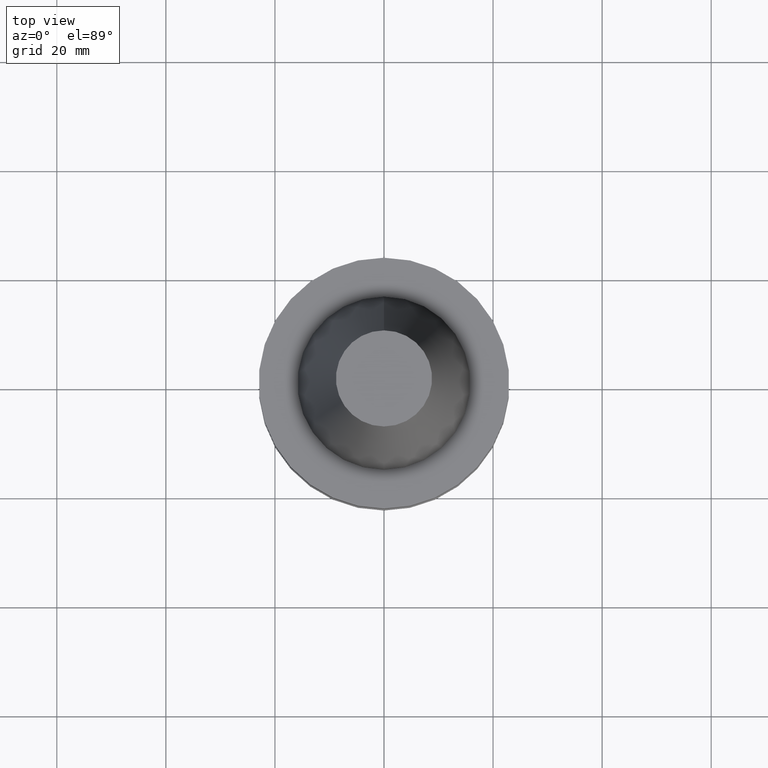
[diagram: clean part render]
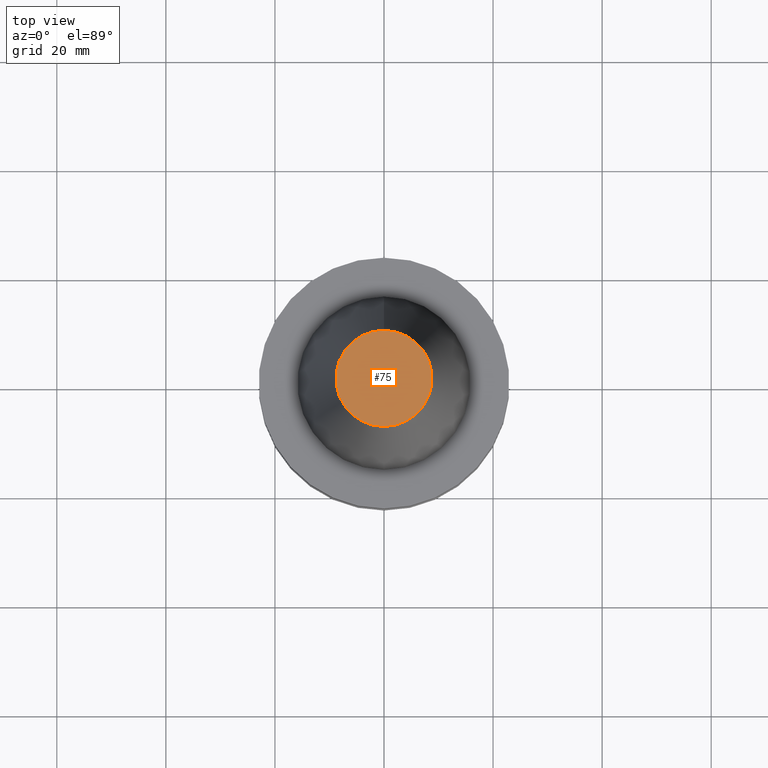
[diagram: same view with one face highlighted and labeled with its STEP entity id]
A machine part, top view. The second image highlights one B-rep face of the part: STEP entity #75.
In plain terms, the highlighted planar face has unit normal (-0, -0, 1).
Its self-contained STEP definition (entity closure, byte-faithful):
#75=ADVANCED_FACE('',(#90),#91,.T.);
#90=FACE_OUTER_BOUND('',#130,.T.);
#91=PLANE('',#131);
#130=EDGE_LOOP('',(#170));
#131=AXIS2_PLACEMENT_3D('',#171,#172,#173);
#170=ORIENTED_EDGE('',*,*,#238,.F.);
#171=CARTESIAN_POINT('',(-2.96364525393659E-015,4.40825000099333,48.4));
#172=DIRECTION('',(-6.12323399573677E-017,-1.22464679914735E-016,1.0));
#173=DIRECTION('',(1.23259516440783E-032,-1.0,-1.22464679914735E-016));
#238=EDGE_CURVE('',#251,#251,#252,.T.);
#251=VERTEX_POINT('',#277);
#252=CIRCLE('',#278,8.81650000198667);
#277=CARTESIAN_POINT('',(-2.96364525393659E-015,8.81650000198667,48.4));
#278=AXIS2_PLACEMENT_3D('',#303,#304,#305);
#303=CARTESIAN_POINT('',(-2.9636452539366E-015,-5.92729050787319E-015,48.4));
#304=DIRECTION('',(6.12323399573677E-017,1.22464679914735E-016,-1.0));
#305=DIRECTION('',(-1.23259516440783E-032,1.0,1.22464679914735E-016));